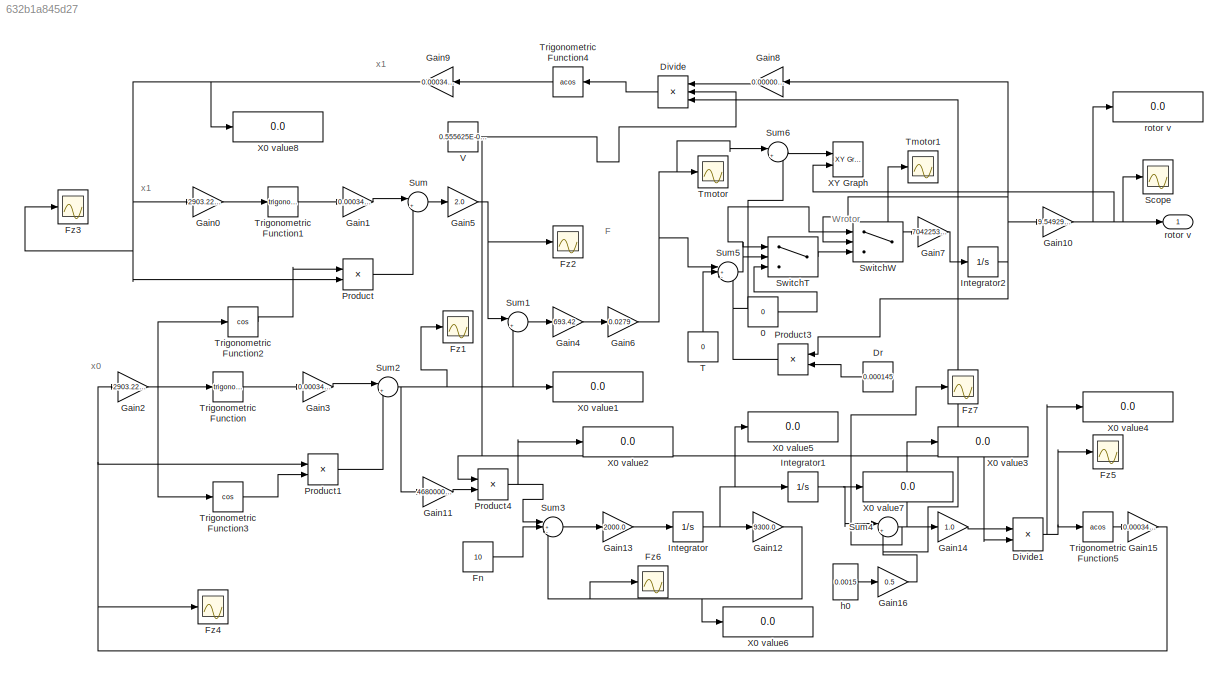
MODEL slx_632b1a845d27
KIND model
CONFIG AbsTol = auto
CONFIG FixedStep = 1e-7
CONFIG MaxStep = 1e-6
CONFIG MinStep = auto
CONFIG RelTol = 1e-3
CONFIG SampleTimeConstraint = Unconstrained
CONFIG Solver = ode3
CONFIG SolverMode = Auto
CONFIG SolverName = ode3
CONFIG StartTime = 0.0
CONFIG StopTime = 0.0050
BLOCK [Display]  X0 value1
  Decimation = 1
  Ports = [1]
BLOCK [Display]  X0 value2
  Decimation = 1
  Ports = [1]
BLOCK [Display]  X0 value3
  Decimation = 1
  Ports = [1]
BLOCK [Display]  X0 value4
  Decimation = 1
  Ports = [1]
BLOCK [Display]  X0 value5
  Decimation = 1
  Ports = [1]
BLOCK [Display]  X0 value6
  Decimation = 1
  Ports = [1]
BLOCK [Display]  X0 value7
  Decimation = 1
  Ports = [1]
BLOCK [Display]  X0 value8
  Decimation = 1
  Ports = [1]
BLOCK [Constant] 0
  Value = 0
BLOCK [Product] Divide
  InputSameDT = off
  Inputs = *//
  OutDataTypeStr = Inherit: Inherit via internal rule
  Ports = [3, 1]
  RndMeth = Floor
  SaturateOnIntegerOverflow = off
BLOCK [Product] Divide1
  InputSameDT = off
  Inputs = */
  OutDataTypeStr = Inherit: Inherit via internal rule
  Ports = [2, 1]
  RndMeth = Floor
  SaturateOnIntegerOverflow = off
BLOCK [Constant] Dr
  Value = 0.000145
BLOCK [Constant] Fn
  Value = 10
BLOCK [Scope] Fz1
  Ports = [1]
  ScopeSpecificationString = C++SS(StrPVP('Location','[148, 392, 476, 667]'),StrPVP('Open','off'),StrPVP('ZoomMode','xonly'),MxPVP('AxesTitles',24,'struct(''axes1'',''%<SignalLabel>'')'),MxPVP('ScopeGraphics',28,'struct(''FigureColor'',''[0.5 0.5 0.5]'',''AxesColor'',''[0 0 0]'',''AxesTickColor'',''[1 1 1]'',''LineColors'',''[1 1 0;1 0 1;0 1 1;1 0 0;0 1 0;0 0 1]'',''LineStyles'',''-|-|-|-|-|-'',''LineWidths'',''[0.5 0.5 0.5 0...<+425ch>
BLOCK [Scope] Fz2
  Ports = [1]
  ScopeSpecificationString = C++SS(StrPVP('Location','[148, 392, 476, 667]'),StrPVP('Open','off'),StrPVP('ZoomMode','xonly'),MxPVP('AxesTitles',24,'struct(''axes1'',''%<SignalLabel>'')'),MxPVP('ScopeGraphics',28,'struct(''FigureColor'',''[0.5 0.5 0.5]'',''AxesColor'',''[0 0 0]'',''AxesTickColor'',''[1 1 1]'',''LineColors'',''[1 1 0;1 0 1;0 1 1;1 0 0;0 1 0;0 0 1]'',''LineStyles'',''-|-|-|-|-|-'',''LineWidths'',''[0.5 0.5 0.5 0...<+419ch>
BLOCK [Scope] Fz3
  Ports = [1]
  ScopeSpecificationString = C++SS(StrPVP('Location','[381, 296, 709, 571]'),StrPVP('Open','off'),StrPVP('ZoomMode','xonly'),MxPVP('AxesTitles',24,'struct(''axes1'',''%<SignalLabel>'')'),MxPVP('ScopeGraphics',28,'struct(''FigureColor'',''[0.5 0.5 0.5]'',''AxesColor'',''[0 0 0]'',''AxesTickColor'',''[1 1 1]'',''LineColors'',''[1 1 0;1 0 1;0 1 1;1 0 0;0 1 0;0 0 1]'',''LineStyles'',''-|-|-|-|-|-'',''LineWidths'',''[0.5 0.5 0.5 0...<+429ch>
BLOCK [Scope] Fz4
  Ports = [1]
  ScopeSpecificationString = C++SS(StrPVP('Location','[381, 296, 709, 571]'),StrPVP('Open','off'),StrPVP('ZoomMode','xonly'),MxPVP('AxesTitles',24,'struct(''axes1'',''%<SignalLabel>'')'),MxPVP('ScopeGraphics',28,'struct(''FigureColor'',''[0.5 0.5 0.5]'',''AxesColor'',''[0 0 0]'',''AxesTickColor'',''[1 1 1]'',''LineColors'',''[1 1 0;1 0 1;0 1 1;1 0 0;0 1 0;0 0 1]'',''LineStyles'',''-|-|-|-|-|-'',''LineWidths'',''[0.5 0.5 0.5 0...<+429ch>
BLOCK [Scope] Fz5
  Ports = [1]
  ScopeSpecificationString = C++SS(StrPVP('Location','[381, 296, 709, 571]'),StrPVP('Open','off'),StrPVP('ZoomMode','xonly'),MxPVP('AxesTitles',24,'struct(''axes1'',''%<SignalLabel>'')'),MxPVP('ScopeGraphics',28,'struct(''FigureColor'',''[0.5 0.5 0.5]'',''AxesColor'',''[0 0 0]'',''AxesTickColor'',''[1 1 1]'',''LineColors'',''[1 1 0;1 0 1;0 1 1;1 0 0;0 1 0;0 0 1]'',''LineStyles'',''-|-|-|-|-|-'',''LineWidths'',''[0.5 0.5 0.5 0...<+376ch>
BLOCK [Scope] Fz6
  Ports = [1]
  ScopeSpecificationString = C++SS(StrPVP('Location','[148, 392, 476, 667]'),StrPVP('Open','off'),StrPVP('ZoomMode','yonly'),MxPVP('AxesTitles',24,'struct(''axes1'',''%<SignalLabel>'')'),MxPVP('ScopeGraphics',28,'struct(''FigureColor'',''[0.5 0.5 0.5]'',''AxesColor'',''[0 0 0]'',''AxesTickColor'',''[1 1 1]'',''LineColors'',''[1 1 0;1 0 1;0 1 1;1 0 0;0 1 0;0 0 1]'',''LineStyles'',''-|-|-|-|-|-'',''LineWidths'',''[0.5 0.5 0.5 0...<+417ch>
BLOCK [Scope] Fz7
  Ports = [1]
  ScopeSpecificationString = C++SS(StrPVP('Location','[507, 414, 835, 689]'),StrPVP('Open','off'),StrPVP('ZoomMode','yonly'),MxPVP('AxesTitles',24,'struct(''axes1'',''%<SignalLabel>'')'),MxPVP('ScopeGraphics',28,'struct(''FigureColor'',''[0.5 0.5 0.5]'',''AxesColor'',''[0 0 0]'',''AxesTickColor'',''[1 1 1]'',''LineColors'',''[1 1 0;1 0 1;0 1 1;1 0 0;0 1 0;0 0 1]'',''LineStyles'',''-|-|-|-|-|-'',''LineWidths'',''[0.5 0.5 0.5 0...<+415ch>
BLOCK [Gain] Gain0
  Gain = 2903.22580645161
  OutDataTypeStr = Inherit: Inherit via internal rule
  ParamDataTypeStr = Inherit: Inherit via internal rule
  SaturateOnIntegerOverflow = off
BLOCK [Gain] Gain1
  Gain = 0.000344444444444444
  OutDataTypeStr = Inherit: Inherit via internal rule
  ParamDataTypeStr = Inherit: Inherit via internal rule
  SaturateOnIntegerOverflow = off
BLOCK [Gain] Gain10
  Gain = 9.54929674840716
  OutDataTypeStr = Inherit: Inherit via internal rule
  ParamDataTypeStr = Inherit: Inherit via internal rule
  SaturateOnIntegerOverflow = off
BLOCK [Gain] Gain11
  Gain = 46800000000.0
  OutDataTypeStr = Inherit: Inherit via internal rule
  ParamDataTypeStr = Inherit: Inherit via internal rule
  SaturateOnIntegerOverflow = off
BLOCK [Gain] Gain12
  Gain = 9300.0
  OutDataTypeStr = Inherit: Inherit via internal rule
  ParamDataTypeStr = Inherit: Inherit via internal rule
  SaturateOnIntegerOverflow = off
BLOCK [Gain] Gain13
  Gain = 2000.0
  OutDataTypeStr = Inherit: Inherit via internal rule
  ParamDataTypeStr = Inherit: Inherit via internal rule
  SaturateOnIntegerOverflow = off
BLOCK [Gain] Gain14
  Gain = 1.0
  OutDataTypeStr = Inherit: Inherit via internal rule
  ParamDataTypeStr = Inherit: Inherit via internal rule
  SaturateOnIntegerOverflow = off
BLOCK [Gain] Gain15
  Gain = 0.000344444444444444
  OutDataTypeStr = Inherit: Inherit via internal rule
  ParamDataTypeStr = Inherit: Inherit via internal rule
  SaturateOnIntegerOverflow = off
BLOCK [Gain] Gain16
  Gain = 0.5
  OutDataTypeStr = Inherit: Inherit via internal rule
  ParamDataTypeStr = Inherit: Inherit via internal rule
  SaturateOnIntegerOverflow = off
BLOCK [Gain] Gain2
  Gain = 2903.22580645161
  OutDataTypeStr = Inherit: Inherit via internal rule
  ParamDataTypeStr = Inherit: Inherit via internal rule
  SaturateOnIntegerOverflow = off
BLOCK [Gain] Gain3
  Gain = 0.000344444444444444
  OutDataTypeStr = Inherit: Inherit via internal rule
  ParamDataTypeStr = Inherit: Inherit via internal rule
  SaturateOnIntegerOverflow = off
BLOCK [Gain] Gain4
  Gain = 693.42
  OutDataTypeStr = Inherit: Inherit via internal rule
  ParamDataTypeStr = Inherit: Inherit via internal rule
  SaturateOnIntegerOverflow = off
BLOCK [Gain] Gain5
  Gain = 2.0
  OutDataTypeStr = Inherit: Inherit via internal rule
  ParamDataTypeStr = Inherit: Inherit via internal rule
  SaturateOnIntegerOverflow = off
BLOCK [Gain] Gain6
  Gain = 0.0279
  OutDataTypeStr = Inherit: Inherit via internal rule
  ParamDataTypeStr = Inherit: Inherit via internal rule
  SaturateOnIntegerOverflow = off
BLOCK [Gain] Gain7
  Gain = 7042253.52112676
  OutDataTypeStr = Inherit: Inherit via internal rule
  ParamDataTypeStr = Inherit: Inherit via internal rule
  SaturateOnIntegerOverflow = off
BLOCK [Gain] Gain8
  Gain = 0.00000000000242774449079875
  OutDataTypeStr = Inherit: Inherit via internal rule
  ParamDataTypeStr = Inherit: Inherit via internal rule
  SaturateOnIntegerOverflow = off
BLOCK [Gain] Gain9
  Gain = 0.000344444444444444
  OutDataTypeStr = Inherit: Inherit via internal rule
  ParamDataTypeStr = Inherit: Inherit via internal rule
  SaturateOnIntegerOverflow = off
BLOCK [Integrator] Integrator
  Ports = [1, 1]
BLOCK [Integrator] Integrator1
  InitialCondition = 0.00075
  Ports = [1, 1]
BLOCK [Integrator] Integrator2
  Ports = [1, 1]
BLOCK [Product] Product
  InputSameDT = off
  OutDataTypeStr = Inherit: Inherit via internal rule
  Ports = [2, 1]
  SaturateOnIntegerOverflow = off
BLOCK [Product] Product1
  InputSameDT = off
  OutDataTypeStr = Inherit: Inherit via internal rule
  Ports = [2, 1]
  SaturateOnIntegerOverflow = off
BLOCK [Product] Product3
  InputSameDT = off
  OutDataTypeStr = Inherit: Inherit via internal rule
  Ports = [2, 1]
  SaturateOnIntegerOverflow = off
BLOCK [Product] Product4
  InputSameDT = off
  OutDataTypeStr = Inherit: Inherit via internal rule
  Ports = [2, 1]
  SaturateOnIntegerOverflow = off
BLOCK [Scope] Scope
  Ports = [1]
  ScopeSpecificationString = C++SS(StrPVP('Location','[542, 233, 1118, 670]'),StrPVP('Open','off'),StrPVP('ZoomMode','xonly'),MxPVP('AxesTitles',24,'struct(''axes1'',''%<SignalLabel>'')'),MxPVP('ScopeGraphics',28,'struct(''FigureColor'',''[0.501960784313725 0.501960784313725 0.501960784313725]'',''AxesColor'',''[0 0 0]'',''AxesTickColor'',''[1 1 1]'',''LineColors'',''[1 1 0;1 0 1;0 1 1;1 0 0;0 1 0;0 0 1]'',''LineStyles'',''-|...<+460ch>
BLOCK [Sum] Sum
  IconShape = round
  InputSameDT = off
  Inputs = |+-
  OutDataTypeStr = Inherit: Inherit via internal rule
  Ports = [2, 1]
  SaturateOnIntegerOverflow = off
BLOCK [Sum] Sum1
  IconShape = round
  InputSameDT = off
  Inputs = |+-
  OutDataTypeStr = Inherit: Inherit via internal rule
  Ports = [2, 1]
  SaturateOnIntegerOverflow = off
BLOCK [Sum] Sum2
  IconShape = round
  InputSameDT = off
  Inputs = |+-
  OutDataTypeStr = Inherit: Inherit via internal rule
  Ports = [2, 1]
  SaturateOnIntegerOverflow = off
BLOCK [Sum] Sum3
  IconShape = round
  InputSameDT = off
  Inputs = |+--
  OutDataTypeStr = Inherit: Inherit via internal rule
  Ports = [3, 1]
  SaturateOnIntegerOverflow = off
BLOCK [Sum] Sum4
  IconShape = round
  InputSameDT = off
  Inputs = |+-
  OutDataTypeStr = Inherit: Inherit via internal rule
  Ports = [2, 1]
  SaturateOnIntegerOverflow = off
BLOCK [Sum] Sum5
  IconShape = round
  InputSameDT = off
  Inputs = |+--
  OutDataTypeStr = Inherit: Inherit via internal rule
  Ports = [3, 1]
  SaturateOnIntegerOverflow = off
BLOCK [Sum] Sum6
  IconShape = round
  InputSameDT = off
  Inputs = |+-
  OutDataTypeStr = Inherit: Inherit via internal rule
  Ports = [2, 1]
  SaturateOnIntegerOverflow = off
BLOCK [Switch] SwitchT
  Criteria = u2 > Threshold
  InputSameDT = off
  SaturateOnIntegerOverflow = off
  Threshold = 0.005
BLOCK [Switch] SwitchW
  Criteria = u2 ~= 0
  InputSameDT = off
  SaturateOnIntegerOverflow = off
BLOCK [Constant] T
  Value = 0
BLOCK [Scope] Tmotor
  Ports = [1]
  ScopeSpecificationString = C++SS(StrPVP('Location','[148, 392, 476, 667]'),StrPVP('Open','off'),StrPVP('ZoomMode','yonly'),MxPVP('AxesTitles',24,'struct(''axes1'',''%<SignalLabel>'')'),MxPVP('ScopeGraphics',28,'struct(''FigureColor'',''[0.5 0.5 0.5]'',''AxesColor'',''[0 0 0]'',''AxesTickColor'',''[1 1 1]'',''LineColors'',''[1 1 0;1 0 1;0 1 1;1 0 0;0 1 0;0 0 1]'',''LineStyles'',''-|-|-|-|-|-'',''LineWidths'',''[0.5 0.5 0.5 0...<+422ch>
BLOCK [Scope] Tmotor1
  Ports = [1]
  ScopeSpecificationString = C++SS(StrPVP('Location','[148, 392, 476, 667]'),StrPVP('Open','off'),StrPVP('ZoomMode','yonly'),MxPVP('AxesTitles',24,'struct(''axes1'',''%<SignalLabel>'')'),MxPVP('ScopeGraphics',28,'struct(''FigureColor'',''[0.501960784313725 0.501960784313725 0.501960784313725]'',''AxesColor'',''[0 0 0]'',''AxesTickColor'',''[1 1 1]'',''LineColors'',''[1 1 0;1 0 1;0 1 1;1 0 0;0 1 0;0 0 1]'',''LineStyles'',''-|-...<+467ch>
BLOCK [Trigonometry] Trigonometric Function
  Ports = [1, 1]
BLOCK [Trigonometry] Trigonometric Function1
  Ports = [1, 1]
BLOCK [Trigonometry] Trigonometric Function2
  Operator = cos
  Ports = [1, 1]
BLOCK [Trigonometry] Trigonometric Function3
  Operator = cos
  Ports = [1, 1]
BLOCK [Trigonometry] Trigonometric Function4
  Operator = acos
  Ports = [1, 1]
BLOCK [Trigonometry] Trigonometric Function5
  Operator = acos
  Ports = [1, 1]
BLOCK [Constant] V
  Value = 0.555625E-06
BLOCK [Reference] XY Graph  REF=simulink/Sinks/XY Graph
  Ports = [2]
  SourceBlock = simulink/Sinks/XY Graph
  SourceType = XY scope.
BLOCK [Constant] h0
  Value = 0.0015
BLOCK [Display] rotor v
  Decimation = 1
  Ports = [1]
BLOCK [Outport] rotor v 
  IconDisplay = Port number
ANNOTATION (root): F
ANNOTATION (root): Wrotor
ANNOTATION (root): x0
ANNOTATION (root): x1
LINE 0:1 -> SwitchT:3
NET Divide1:1 ->  X0 value4:1, Fz5:1, Trigonometric Function5:1
LINE Divide:1 -> Trigonometric Function4:1
LINE Dr:1 -> Product3:2
LINE Fn:1 -> Sum3:2
LINE Gain0:1 -> Trigonometric Function1:1
NET Gain10:1 -> Scope:1, XY Graph:2, rotor v :1, rotor v:1
LINE Gain11:1 -> Product4:2
NET Gain12:1 ->  X0 value6:1, Fz6:1, Sum3:3
LINE Gain13:1 -> Integrator:1
LINE Gain14:1 -> Divide1:1
NET Gain15:1 -> Fz4:1, Gain2:1, Product1:1
NET Gain16:1 -> Divide:3, Sum4:2
LINE Gain1:1 -> Sum:1
NET Gain2:1 -> Trigonometric Function2:1, Trigonometric Function3:1, Trigonometric Function:1
LINE Gain3:1 -> Sum2:1
LINE Gain4:1 -> Gain6:1
NET Gain5:1 -> Fz2:1, Sum1:1
NET Gain6:1 -> Sum5:1, Sum6:1, Tmotor:1
LINE Gain7:1 -> Integrator2:1
LINE Gain8:1 -> Divide:1
NET Gain9:1 ->  X0 value8:1, Fz3:1, Gain0:1, Product:2
NET Integrator1:1 ->  X0 value7:1, Sum4:1
NET Integrator2:1 -> Gain10:1, Gain8:1, Product3:1, SwitchW:2
NET Integrator:1 ->  X0 value5:1, Gain12:1, Integrator1:1
LINE Product1:1 -> Sum2:2
NET Product3:1 -> Sum5:3, Sum6:2
NET Product4:1 ->  X0 value2:1, Sum3:1
LINE Product:1 -> Sum:2
LINE Sum1:1 -> Gain4:1
NET Sum2:1 ->  X0 value1:1, Fz1:1, Gain11:1, Sum1:2
LINE Sum3:1 -> Gain13:1
NET Sum4:1 ->  X0 value3:1, Fz7:1, Gain14:1
NET Sum5:1 -> SwitchT:1, SwitchT:2, SwitchW:1
LINE Sum6:1 -> XY Graph:1
LINE Sum:1 -> Gain5:1
LINE SwitchT:1 -> SwitchW:3
NET SwitchW:1 -> Gain7:1, Tmotor1:1
LINE T:1 -> Sum5:2
LINE Trigonometric Function1:1 -> Gain1:1
LINE Trigonometric Function2:1 -> Product:1
LINE Trigonometric Function3:1 -> Product1:2
LINE Trigonometric Function4:1 -> Gain9:1
LINE Trigonometric Function5:1 -> Gain15:1
LINE Trigonometric Function:1 -> Gain3:1
NET V:1 -> Divide1:2, Divide:2, Product4:1
LINE h0:1 -> Gain16:1
note: NET lines group one-source signal fan-out (src -> all destinations, sorted); 1:1 wires keep LINE
